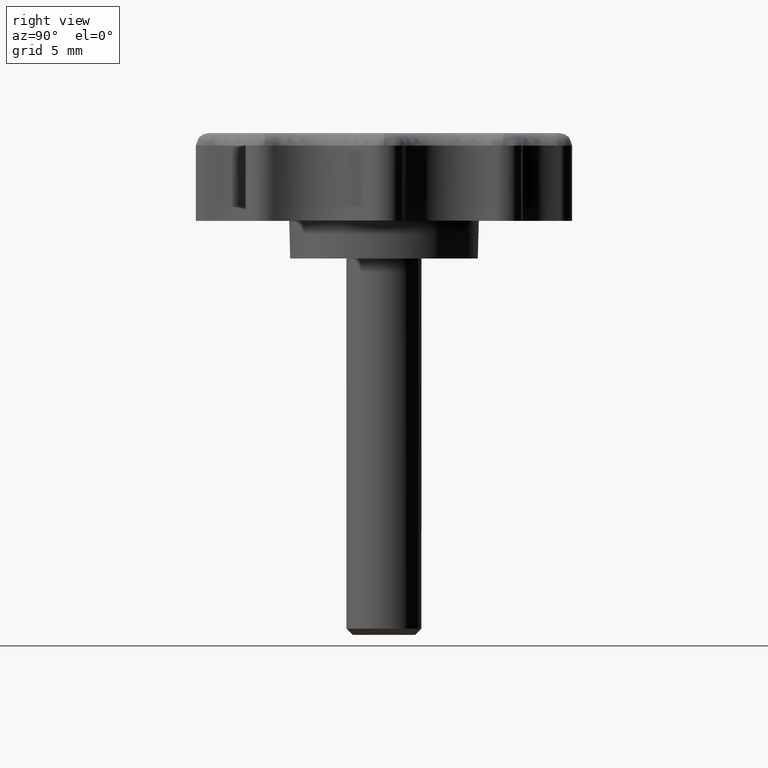
[diagram: clean part render]
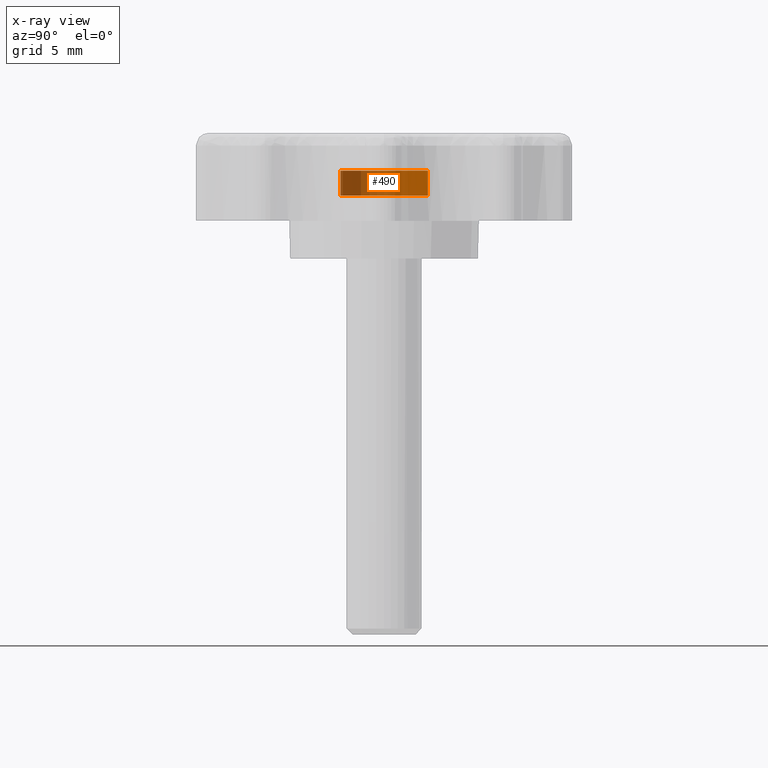
[diagram: x-ray — body ghosted, one internal face saturated and labeled with its STEP entity id]
A machine part, right view, then the same camera in x-ray: the body is ghosted and one INTERNAL B-rep face — a face not visible from any outside direction — is saturated and labeled: STEP entity #490.
In plain terms, the highlighted face is a freeform B-spline surface patch.
Its self-contained STEP definition (entity closure, byte-faithful):
#388=CARTESIAN_POINT('',(0.413119821298655,-3.475533342272832,7.050000000000002));
#389=CARTESIAN_POINT('',(0.313651550232922,-3.487356654070120,7.050000000000003));
#390=CARTESIAN_POINT('',(0.213669888371999,-3.493471794476533,7.050000000000001));
#391=CARTESIAN_POINT('',(-3.279801906104533,-3.707141682848533,7.050000000000001));
#392=CARTESIAN_POINT('',(-3.493471794476533,-0.213669888371999,7.050000000000001));
#393=CARTESIAN_POINT('',(-3.707141682848533,3.279801906104533,7.050000000000001));
#394=CARTESIAN_POINT('',(-0.213669888371999,3.493471794476533,7.050000000000001));
#395=CARTESIAN_POINT('',(0.413119821298655,-3.475533342272832,4.948749999999999));
#396=CARTESIAN_POINT('',(0.313651550232922,-3.487356654070120,4.948749999999999));
#397=CARTESIAN_POINT('',(0.213669888371999,-3.493471794476533,4.948749999999999));
#398=CARTESIAN_POINT('',(-3.279801906104533,-3.707141682848533,4.948750000000000));
#399=CARTESIAN_POINT('',(-3.493471794476533,-0.213669888371999,4.948749999999999));
#400=CARTESIAN_POINT('',(-3.707141682848533,3.279801906104533,4.948750000000000));
#401=CARTESIAN_POINT('',(-0.213669888371999,3.493471794476533,4.948749999999999));
#409=(BOUNDED_SURFACE()B_SPLINE_SURFACE(2,1,((#388,#395),(#389,#396),(#390,#397),(#391,#398),(#392,#399),(#393,#400),(#394,#401)),.UNSPECIFIED.,.F.,.F.,.U.)B_SPLINE_SURFACE_WITH_KNOTS((3,2,2,3),(2,2),(0.0,0.231959594928934,6.030949468152262,11.829939341375590),(0.0,2.101250000000003),.UNSPECIFIED.)GEOMETRIC_REPRESENTATION_ITEM()RATIONAL_B_SPLINE_SURFACE(((0.977505800795127,0.977505800795127),(0.988284271247462,0.988284271247462),(1.0,1.0),(0.707106781186548,0.707106781186548),(1.0,1.0),(0.707106781186548,0.707106781186548),(1.0,1.0)))REPRESENTATION_ITEM('')SURFACE());
#410=CARTESIAN_POINT('',(0.413119821320646,-3.475533342270218,7.0));
#411=VERTEX_POINT('',#410);
#412=CARTESIAN_POINT('',(-3.500000000000000,0.0,7.0));
#413=VERTEX_POINT('',#412);
#414=CARTESIAN_POINT('',(0.413119821320646,-3.475533342270219,7.0));
#415=CARTESIAN_POINT('',(0.207284418803909,-3.500000000000000,7.000000000000001));
#416=CARTESIAN_POINT('',(0.0,-3.500000000000000,7.0));
#417=CARTESIAN_POINT('',(-3.500000000000000,-3.500000000000000,6.999999999999999));
#418=CARTESIAN_POINT('',(-3.500000000000000,0.0,7.0));
#426=(BOUNDED_CURVE()B_SPLINE_CURVE(2,(#414,#415,#416,#417,#418),.UNSPECIFIED.,.F.,.U.)B_SPLINE_CURVE_WITH_KNOTS((3,2,3),(0.229562473513506,0.250000000000000,0.500000000000000),.UNSPECIFIED.)CURVE()GEOMETRIC_REPRESENTATION_ITEM()RATIONAL_B_SPLINE_CURVE((0.956026754183694,0.976055948331142,1.0,0.707106781186547,1.0))REPRESENTATION_ITEM(''));
#427=EDGE_CURVE('',#411,#413,#426,.T.);
#428=ORIENTED_EDGE('',*,*,#427,.T.);
#429=CARTESIAN_POINT('',(-0.213665798524392,3.493472044617524,6.999999999999895));
#430=VERTEX_POINT('',#429);
#431=CARTESIAN_POINT('',(-3.500000000000000,0.0,7.0));
#432=CARTESIAN_POINT('',(-3.500000000000000,3.292475095908641,7.0));
#433=CARTESIAN_POINT('',(-0.213665798524392,3.493472044617524,6.999999999999895));
#441=(BOUNDED_CURVE()B_SPLINE_CURVE(2,(#431,#432,#433),.UNSPECIFIED.,.F.,.U.)B_SPLINE_CURVE_WITH_KNOTS((3,3),(0.500000000000000,0.739333164244510),.UNSPECIFIED.)CURVE()GEOMETRIC_REPRESENTATION_ITEM()RATIONAL_B_SPLINE_CURVE((1.0,0.719603756622467,0.976072474603484))REPRESENTATION_ITEM(''));
#442=EDGE_CURVE('',#413,#430,#441,.T.);
#443=ORIENTED_EDGE('',*,*,#442,.T.);
#444=CARTESIAN_POINT('',(-0.213665847708177,3.493472041609429,5.0));
#445=VERTEX_POINT('',#444);
#446=CARTESIAN_POINT('',(-0.213665798524392,3.493472044617524,6.999999999999895));
#447=CARTESIAN_POINT('',(-0.213665847708177,3.493472041609429,5.0));
#448=QUASI_UNIFORM_CURVE('',1,(#446,#447),.UNSPECIFIED.,.F.,.U.);
#449=EDGE_CURVE('',#430,#445,#448,.T.);
#450=ORIENTED_EDGE('',*,*,#449,.T.);
#451=CARTESIAN_POINT('',(-3.500000000000000,0.0,5.0));
#452=VERTEX_POINT('',#451);
#453=CARTESIAN_POINT('',(-3.500000000000000,0.0,5.0));
#454=CARTESIAN_POINT('',(-3.500000000000000,3.292475049468031,5.0));
#455=CARTESIAN_POINT('',(-0.213665847708176,3.493472041609429,4.999999999999999));
#463=(BOUNDED_CURVE()B_SPLINE_CURVE(2,(#453,#454,#455),.UNSPECIFIED.,.F.,.U.)B_SPLINE_CURVE_WITH_KNOTS((3,3),(0.500000000000000,0.739333161815263),.UNSPECIFIED.)CURVE()GEOMETRIC_REPRESENTATION_ITEM()RATIONAL_B_SPLINE_CURVE((1.0,0.719603759468507,0.976072469397135))REPRESENTATION_ITEM(''));
#464=EDGE_CURVE('',#452,#445,#463,.T.);
#465=ORIENTED_EDGE('',*,*,#464,.F.);
#466=CARTESIAN_POINT('',(0.413119821320646,-3.475533342270218,5.0));
#467=VERTEX_POINT('',#466);
#468=CARTESIAN_POINT('',(0.413119821320646,-3.475533342270219,5.0));
#469=CARTESIAN_POINT('',(0.207284418803909,-3.500000000000000,4.999999999999999));
#470=CARTESIAN_POINT('',(0.0,-3.500000000000000,5.0));
#471=CARTESIAN_POINT('',(-3.500000000000000,-3.500000000000000,4.999999999999999));
#472=CARTESIAN_POINT('',(-3.500000000000000,0.0,5.0));
#480=(BOUNDED_CURVE()B_SPLINE_CURVE(2,(#468,#469,#470,#471,#472),.UNSPECIFIED.,.F.,.U.)B_SPLINE_CURVE_WITH_KNOTS((3,2,3),(0.229562473513506,0.250000000000000,0.500000000000000),.UNSPECIFIED.)CURVE()GEOMETRIC_REPRESENTATION_ITEM()RATIONAL_B_SPLINE_CURVE((0.956026754183694,0.976055948331142,1.0,0.707106781186547,1.0))REPRESENTATION_ITEM(''));
#481=EDGE_CURVE('',#467,#452,#480,.T.);
#482=ORIENTED_EDGE('',*,*,#481,.F.);
#483=CARTESIAN_POINT('',(0.413119821320646,-3.475533342270218,7.0));
#484=CARTESIAN_POINT('',(0.413119821320646,-3.475533342270218,5.0));
#485=QUASI_UNIFORM_CURVE('',1,(#483,#484),.UNSPECIFIED.,.F.,.U.);
#486=EDGE_CURVE('',#411,#467,#485,.T.);
#487=ORIENTED_EDGE('',*,*,#486,.F.);
#488=EDGE_LOOP('',(#428,#443,#450,#465,#482,#487));
#489=FACE_OUTER_BOUND('',#488,.T.);
#490=ADVANCED_FACE('',(#489),#409,.T.);